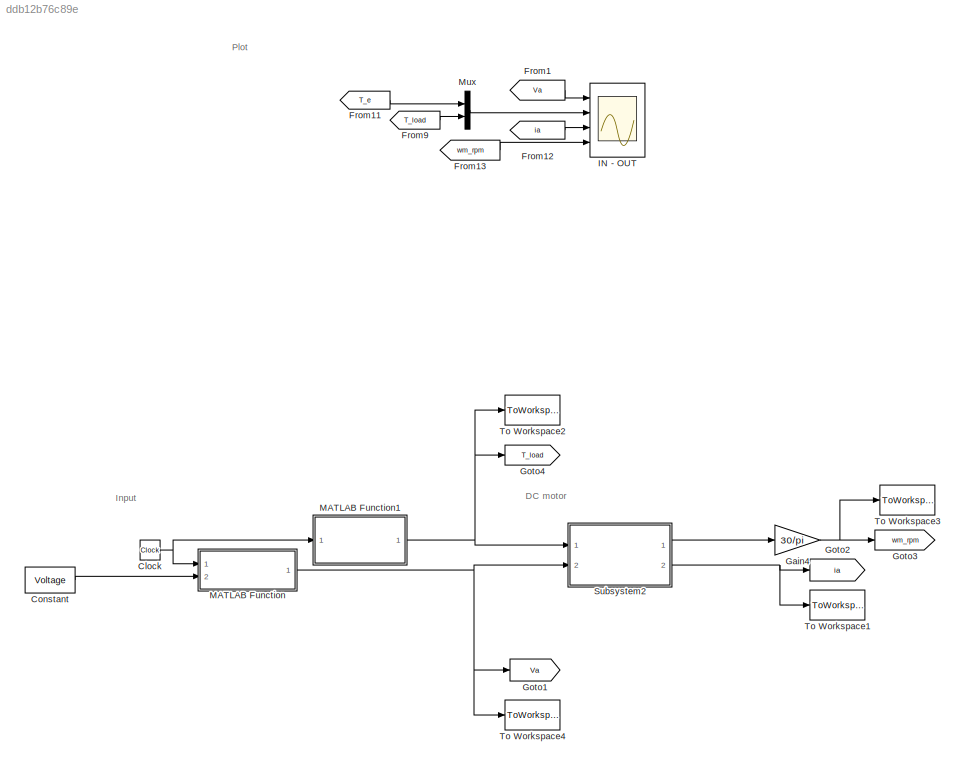
MODEL slx_ddb12b76c89e
KIND model
CONFIG AbsTol = auto
CONFIG EnableMultiTasking = off
CONFIG FixedStep = 0.001
CONFIG MaxStep = auto
CONFIG MinStep = auto
CONFIG RelTol = 1e-3
CONFIG SampleTimeConstraint = Unconstrained
CONFIG SolverName = FixedStepAuto
CONFIG StartTime = 0.0
CONFIG StopTime = 15
BLOCK [Clock] Clock
BLOCK [Constant] Constant
  Value = Voltage
BLOCK [From] From1
  GotoTag = Va
  TagVisibility = global
BLOCK [From] From11
  GotoTag = T_e
  TagVisibility = global
BLOCK [From] From12
  GotoTag = ia
  TagVisibility = global
BLOCK [From] From13
  GotoTag = wm_rpm
  TagVisibility = global
BLOCK [From] From9
  GotoTag = T_load
  TagVisibility = global
BLOCK [Gain] Gain4
  Gain = 30/pi
BLOCK [Goto] Goto1
  GotoTag = Va
  TagVisibility = global
BLOCK [Goto] Goto2
  GotoTag = ia
  TagVisibility = global
BLOCK [Goto] Goto3
  GotoTag = wm_rpm
  TagVisibility = global
BLOCK [Goto] Goto4
  GotoTag = T_load
  TagVisibility = global
BLOCK [Scope] IN - OUT
  Floating = off
  NumInputPorts = 4
  Ports = [4]
  ScopeSpecificationString = Simulink.scopes.TimeScopeBlockCfg('CurrentConfiguration', extmgr.ConfigurationSet(extmgr.Configuration('Core','General UI',true),extmgr.Configuration('Core','Source UI',true),extmgr.Configuration('Sources','WiredSimulink',true,'DataLogging',true,'DataLoggingVariableName','DCmotor_In_Out','DataLoggingSaveFormat','StructureWithTime'),extmgr.Configuration('Visuals','Time Domain',true,'SerializedDispl...<+4087ch>
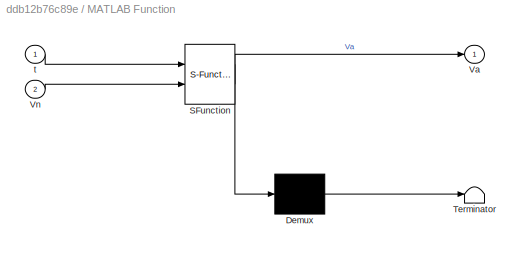
BLOCK [SubSystem] MATLAB Function
  ErrorFcn = Stateflow.Translate.translate
  PermitHierarchicalResolution = ExplicitOnly
  Ports = [2, 1]
  RequestExecContextInheritance = off
  SFBlockType = MATLAB Function
  TreatAsAtomicUnit = on
BLOCK [Demux] MATLAB Function/ Demux 
  Outputs = 1
  Ports = [1, 1]
BLOCK [S-Function] MATLAB Function/ SFunction 
  EnableBusSupport = on
  FunctionName = sf_sfun
  PortCounts = [2 2]
  Ports = [2, 2]
  SFcnIsStateOwnerBlock = off
  SFunctionDeploymentMode = off
  Tag = Stateflow S-Function 2
BLOCK [Terminator] MATLAB Function/ Terminator 
BLOCK [Outport] MATLAB Function/Va
BLOCK [Inport] MATLAB Function/Vn
  Port = 2
BLOCK [Inport] MATLAB Function/t
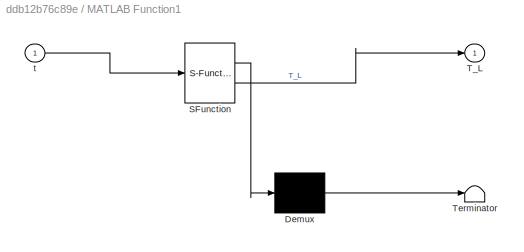
BLOCK [SubSystem] MATLAB Function1
  ErrorFcn = Stateflow.Translate.translate
  PermitHierarchicalResolution = ExplicitOnly
  Ports = [1, 1]
  RequestExecContextInheritance = off
  SFBlockType = MATLAB Function
  TreatAsAtomicUnit = on
BLOCK [Demux] MATLAB Function1/ Demux 
  Outputs = 1
  Ports = [1, 1]
BLOCK [S-Function] MATLAB Function1/ SFunction 
  EnableBusSupport = on
  FunctionName = sf_sfun
  PortCounts = [1 2]
  Ports = [1, 2]
  SFcnIsStateOwnerBlock = off
  SFunctionDeploymentMode = off
  Tag = Stateflow S-Function 1
BLOCK [Terminator] MATLAB Function1/ Terminator 
BLOCK [Outport] MATLAB Function1/T_L
BLOCK [Inport] MATLAB Function1/t
BLOCK [Mux] Mux
  DisplayOption = bar
  Inputs = 2
  Ports = [2, 1]
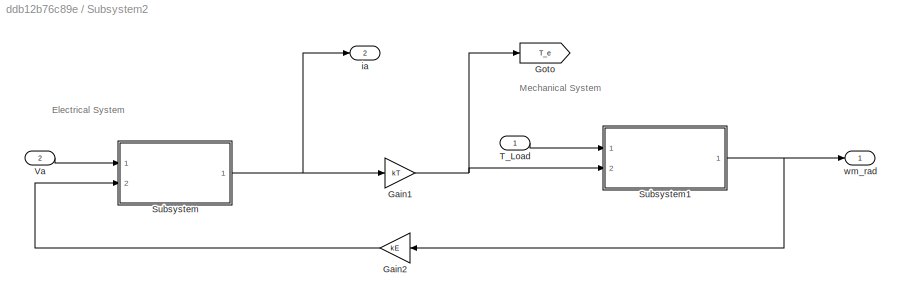
BLOCK [SubSystem] Subsystem2
  Ports = [2, 2]
  RequestExecContextInheritance = off
BLOCK [Gain] Subsystem2/Gain1
  Gain = kT
BLOCK [Gain] Subsystem2/Gain2
  Gain = kE
  NameLocation = top
BLOCK [Goto] Subsystem2/Goto
  GotoTag = T_e
  TagVisibility = global
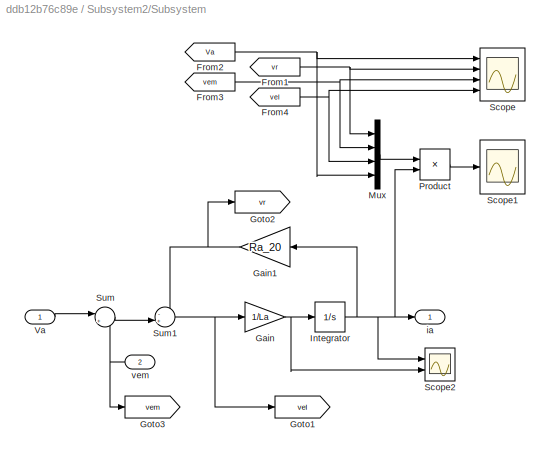
BLOCK [SubSystem] Subsystem2/Subsystem
  Ports = [2, 1]
  RequestExecContextInheritance = off
BLOCK [From] Subsystem2/Subsystem/From1
  GotoTag = vr
  TagVisibility = global
BLOCK [From] Subsystem2/Subsystem/From2
  GotoTag = Va
  TagVisibility = global
BLOCK [From] Subsystem2/Subsystem/From3
  GotoTag = vem
  TagVisibility = global
BLOCK [From] Subsystem2/Subsystem/From4
  GotoTag = vel
  TagVisibility = global
BLOCK [Gain] Subsystem2/Subsystem/Gain
  Gain = 1/La
BLOCK [Gain] Subsystem2/Subsystem/Gain1
  Gain = Ra_20
  NameLocation = top
BLOCK [Goto] Subsystem2/Subsystem/Goto1
  GotoTag = vel
  TagVisibility = global
BLOCK [Goto] Subsystem2/Subsystem/Goto2
  GotoTag = vr
  TagVisibility = global
BLOCK [Goto] Subsystem2/Subsystem/Goto3
  GotoTag = vem
  TagVisibility = global
BLOCK [Integrator] Subsystem2/Subsystem/Integrator
  InitialCondition = i0
  Ports = [1, 1]
BLOCK [Mux] Subsystem2/Subsystem/Mux
  DisplayOption = bar
  Ports = [4, 1]
BLOCK [Product] Subsystem2/Subsystem/Product
  Ports = [2, 1]
BLOCK [Scope] Subsystem2/Subsystem/Scope
  Floating = off
  NumInputPorts = 4
  Ports = [4]
  ScopeSpecificationString = Simulink.scopes.TimeScopeBlockCfg('CurrentConfiguration', extmgr.ConfigurationSet(extmgr.Configuration('Core','General UI',true),extmgr.Configuration('Core','Source UI',true),extmgr.Configuration('Sources','WiredSimulink',true,'DataLoggingVariableName','V_components','DataLogging',true,'DataLoggingSaveFormat','StructureWithTime'),extmgr.Configuration('Visuals','Time Domain',true,'SerializedDisplay...<+2007ch>
BLOCK [Scope] Subsystem2/Subsystem/Scope1
  Floating = off
  NumInputPorts = 1
  Ports = [1]
  ScopeSpecificationString = Simulink.scopes.TimeScopeBlockCfg('CurrentConfiguration', extmgr.ConfigurationSet(extmgr.Configuration('Core','General UI',true),extmgr.Configuration('Core','Source UI',true),extmgr.Configuration('Sources','WiredSimulink',true,'DataLoggingVariableName','P_components_el','DataLogging',true),extmgr.Configuration('Visuals','Time Domain',true,'SerializedDisplays',{struct('MinYLimReal','-30.55345','Max...<+2011ch>
BLOCK [Scope] Subsystem2/Subsystem/Scope2
  Floating = off
  NumInputPorts = 2
  Ports = [2]
  ScopeSpecificationString = Simulink.scopes.TimeScopeBlockCfg('CurrentConfiguration', extmgr.ConfigurationSet(extmgr.Configuration('Core','General UI',true),extmgr.Configuration('Core','Source UI',true),extmgr.Configuration('Sources','WiredSimulink',true,'DataLoggingVariableName','ScopeData4'),extmgr.Configuration('Visuals','Time Domain',true,'SerializedDisplays',{struct('MinYLimReal','-1.47931','MaxYLimReal','13.31379','YLa...<+2640ch>
BLOCK [Sum] Subsystem2/Subsystem/Sum
  Inputs = |+-
  Ports = [2, 1]
BLOCK [Sum] Subsystem2/Subsystem/Sum1
  Inputs = -+|
  Ports = [2, 1]
BLOCK [Inport] Subsystem2/Subsystem/Va
BLOCK [Outport] Subsystem2/Subsystem/ia
BLOCK [Inport] Subsystem2/Subsystem/vem
  Port = 2
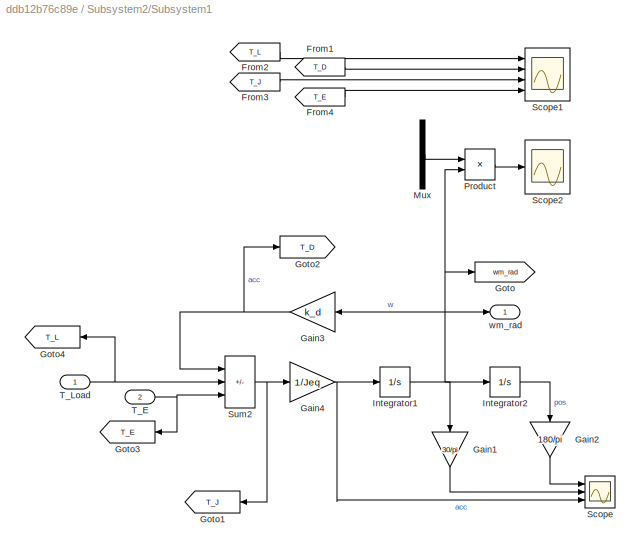
BLOCK [SubSystem] Subsystem2/Subsystem1
  Ports = [2, 1]
  RequestExecContextInheritance = off
BLOCK [From] Subsystem2/Subsystem1/From1
  GotoTag = T_D
  TagVisibility = global
BLOCK [From] Subsystem2/Subsystem1/From2
  GotoTag = T_L
  TagVisibility = global
BLOCK [From] Subsystem2/Subsystem1/From3
  GotoTag = T_J
  TagVisibility = global
BLOCK [From] Subsystem2/Subsystem1/From4
  GotoTag = T_E
  TagVisibility = global
BLOCK [Gain] Subsystem2/Subsystem1/Gain1
  Gain = 30/pi
  NameLocation = left
BLOCK [Gain] Subsystem2/Subsystem1/Gain2
  Gain = 180/pi
  NameLocation = left
BLOCK [Gain] Subsystem2/Subsystem1/Gain3
  Gain = k_d
  NameLocation = top
BLOCK [Gain] Subsystem2/Subsystem1/Gain4
  Gain = 1/Jeq
BLOCK [Goto] Subsystem2/Subsystem1/Goto
  GotoTag = wm_rad
  TagVisibility = global
BLOCK [Goto] Subsystem2/Subsystem1/Goto1
  GotoTag = T_J
  NameLocation = top
  TagVisibility = global
BLOCK [Goto] Subsystem2/Subsystem1/Goto2
  GotoTag = T_D
  TagVisibility = global
BLOCK [Goto] Subsystem2/Subsystem1/Goto3
  GotoTag = T_E
  NameLocation = top
  TagVisibility = global
BLOCK [Goto] Subsystem2/Subsystem1/Goto4
  GotoTag = T_L
  NameLocation = top
  TagVisibility = global
BLOCK [Integrator] Subsystem2/Subsystem1/Integrator1
  InitialCondition = w0
  Ports = [1, 1]
BLOCK [Integrator] Subsystem2/Subsystem1/Integrator2
  InitialCondition = pos0
  Ports = [1, 1]
  WrapState = on
  WrappedStateLowerValue = 0
  WrappedStateUpperValue = 2*pi
BLOCK [Mux] Subsystem2/Subsystem1/Mux
  DisplayOption = bar
  Ports = [4, 1]
BLOCK [Product] Subsystem2/Subsystem1/Product
  Ports = [2, 1]
BLOCK [Scope] Subsystem2/Subsystem1/Scope
  Floating = off
  NumInputPorts = 3
  Ports = [3]
  ScopeSpecificationString = Simulink.scopes.TimeScopeBlockCfg('CurrentConfiguration', extmgr.ConfigurationSet(extmgr.Configuration('Core','General UI',true),extmgr.Configuration('Core','Source UI',true),extmgr.Configuration('Sources','WiredSimulink',true,'DataLoggingVariableName','ScopeData1'),extmgr.Configuration('Visuals','Time Domain',true,'SerializedDisplays',{struct('MinYLimReal','-44.99496','MaxYLimReal','404.95465','Y...<+3560ch>
BLOCK [Scope] Subsystem2/Subsystem1/Scope1
  Floating = off
  NumInputPorts = 4
  Ports = [4]
  ScopeSpecificationString = Simulink.scopes.TimeScopeBlockCfg('CurrentConfiguration', extmgr.ConfigurationSet(extmgr.Configuration('Core','General UI',true),extmgr.Configuration('Core','Source UI',true),extmgr.Configuration('Sources','WiredSimulink',true,'DataLoggingVariableName','Torque_components','DataLogging',true),extmgr.Configuration('Visuals','Time Domain',true,'SerializedDisplays',{struct('MinYLimReal','-1.81965','Ma...<+2040ch>
BLOCK [Scope] Subsystem2/Subsystem1/Scope2
  Floating = off
  NumInputPorts = 1
  Ports = [1]
  ScopeSpecificationString = Simulink.scopes.TimeScopeBlockCfg('CurrentConfiguration', extmgr.ConfigurationSet(extmgr.Configuration('Core','General UI',true),extmgr.Configuration('Core','Source UI',true),extmgr.Configuration('Sources','WiredSimulink',true,'DataLoggingVariableName','ScopeData3'),extmgr.Configuration('Visuals','Time Domain',true,'SerializedDisplays',{struct('MinYLimReal','-279.40903','MaxYLimReal','279.67004','...<+1965ch>
BLOCK [Sum] Subsystem2/Subsystem1/Sum2
  IconShape = rectangular
  Inputs = --+
  Ports = [3, 1]
BLOCK [Inport] Subsystem2/Subsystem1/T_E
  NameLocation = left
  Port = 2
BLOCK [Inport] Subsystem2/Subsystem1/T_Load
BLOCK [Outport] Subsystem2/Subsystem1/wm_rad
BLOCK [Inport] Subsystem2/T_Load
BLOCK [Inport] Subsystem2/Va
  Port = 2
BLOCK [Outport] Subsystem2/ia
  Port = 2
BLOCK [Outport] Subsystem2/wm_rad
BLOCK [ToWorkspace] To Workspace1
  FixptAsFi = on
  MaxDataPoints = inf
  Ports = [1]
  SampleTime = -1
  SaveFormat = Structure With Time
  VariableName = ia
BLOCK [ToWorkspace] To Workspace2
  FixptAsFi = on
  MaxDataPoints = inf
  Ports = [1]
  SampleTime = -1
  SaveFormat = Structure With Time
  VariableName = T_Load
BLOCK [ToWorkspace] To Workspace3
  FixptAsFi = on
  MaxDataPoints = inf
  Ports = [1]
  SampleTime = -1
  SaveFormat = Structure With Time
  VariableName = wm_rpm
BLOCK [ToWorkspace] To Workspace4
  FixptAsFi = on
  MaxDataPoints = inf
  Ports = [1]
  SampleTime = -1
  SaveFormat = Structure With Time
  VariableName = Va
ANNOTATION (root): DC motor
ANNOTATION (root): Input
ANNOTATION (root): Plot
ANNOTATION Subsystem2: Electrical System
ANNOTATION Subsystem2: Mechanical System
NET Clock:1 -> MATLAB Function1:1, MATLAB Function:1
LINE Constant:1 -> MATLAB Function:2
LINE From11:1 -> Mux:1
LINE From12:1 -> IN - OUT:3
LINE From13:1 -> IN - OUT:4
LINE From1:1 -> IN - OUT:1
LINE From9:1 -> Mux:2
NET Gain4:1 -> Goto3:1, To Workspace3:1
NET MATLAB Function1:1 -> Goto4:1, Subsystem2:1, To Workspace2:1
NET MATLAB Function:1 -> Goto1:1, Subsystem2:2, To Workspace4:1
LINE Mux:1 -> IN - OUT:2
NET Subsystem2/Gain1:1 -> Subsystem2/Goto:1, Subsystem2/Subsystem1:2
LINE Subsystem2/Gain2:1 -> Subsystem2/Subsystem:2
NET Subsystem2/Subsystem/From1:1 -> Subsystem2/Subsystem/Mux:1, Subsystem2/Subsystem/Scope:2
NET Subsystem2/Subsystem/From2:1 -> Subsystem2/Subsystem/Mux:4, Subsystem2/Subsystem/Scope:1
NET Subsystem2/Subsystem/From3:1 -> Subsystem2/Subsystem/Mux:2, Subsystem2/Subsystem/Scope:3
NET Subsystem2/Subsystem/From4:1 -> Subsystem2/Subsystem/Mux:3, Subsystem2/Subsystem/Scope:4
NET Subsystem2/Subsystem/Gain1:1 -> Subsystem2/Subsystem/Goto2:1, Subsystem2/Subsystem/Sum1:1
NET Subsystem2/Subsystem/Gain:1 -> Subsystem2/Subsystem/Integrator:1, Subsystem2/Subsystem/Scope2:2
NET Subsystem2/Subsystem/Integrator:1 -> Subsystem2/Subsystem/Gain1:1, Subsystem2/Subsystem/Product:2, Subsystem2/Subsystem/Scope2:1, Subsystem2/Subsystem/ia:1
LINE Subsystem2/Subsystem/Mux:1 -> Subsystem2/Subsystem/Product:1
LINE Subsystem2/Subsystem/Product:1 -> Subsystem2/Subsystem/Scope1:1
NET Subsystem2/Subsystem/Sum1:1 -> Subsystem2/Subsystem/Gain:1, Subsystem2/Subsystem/Goto1:1
LINE Subsystem2/Subsystem/Sum:1 -> Subsystem2/Subsystem/Sum1:2
LINE Subsystem2/Subsystem/Va:1 -> Subsystem2/Subsystem/Sum:1
NET Subsystem2/Subsystem/vem:1 -> Subsystem2/Subsystem/Goto3:1, Subsystem2/Subsystem/Sum:2
LINE Subsystem2/Subsystem1/From1:1 -> Subsystem2/Subsystem1/Scope1:2
LINE Subsystem2/Subsystem1/From2:1 -> Subsystem2/Subsystem1/Scope1:1
LINE Subsystem2/Subsystem1/From3:1 -> Subsystem2/Subsystem1/Scope1:3
LINE Subsystem2/Subsystem1/From4:1 -> Subsystem2/Subsystem1/Scope1:4
LINE Subsystem2/Subsystem1/Gain1:1 -> Subsystem2/Subsystem1/Scope:2
LINE Subsystem2/Subsystem1/Gain2:1 -> Subsystem2/Subsystem1/Scope:1
NET Subsystem2/Subsystem1/Gain3:1 -> Subsystem2/Subsystem1/Goto2:1, Subsystem2/Subsystem1/Sum2:1
NET Subsystem2/Subsystem1/Gain4:1 -> Subsystem2/Subsystem1/Integrator1:1, Subsystem2/Subsystem1/Scope:3
NET Subsystem2/Subsystem1/Integrator1:1 -> Subsystem2/Subsystem1/Gain1:1, Subsystem2/Subsystem1/Gain3:1, Subsystem2/Subsystem1/Goto:1, Subsystem2/Subsystem1/Integrator2:1, Subsystem2/Subsystem1/Product:2, Subsystem2/Subsystem1/wm_rad:1
LINE Subsystem2/Subsystem1/Integrator2:1 -> Subsystem2/Subsystem1/Gain2:1
LINE Subsystem2/Subsystem1/Mux:1 -> Subsystem2/Subsystem1/Product:1
LINE Subsystem2/Subsystem1/Product:1 -> Subsystem2/Subsystem1/Scope2:1
NET Subsystem2/Subsystem1/Sum2:1 -> Subsystem2/Subsystem1/Gain4:1, Subsystem2/Subsystem1/Goto1:1
NET Subsystem2/Subsystem1/T_E:1 -> Subsystem2/Subsystem1/Goto3:1, Subsystem2/Subsystem1/Sum2:3
NET Subsystem2/Subsystem1/T_Load:1 -> Subsystem2/Subsystem1/Goto4:1, Subsystem2/Subsystem1/Sum2:2
NET Subsystem2/Subsystem1:1 -> Subsystem2/Gain2:1, Subsystem2/wm_rad:1
NET Subsystem2/Subsystem:1 -> Subsystem2/Gain1:1, Subsystem2/ia:1
LINE Subsystem2/T_Load:1 -> Subsystem2/Subsystem1:1
LINE Subsystem2/Va:1 -> Subsystem2/Subsystem:1
LINE Subsystem2:1 -> Gain4:1
NET Subsystem2:2 -> Goto2:1, To Workspace1:1
note: NET lines group one-source signal fan-out (src -> all destinations, sorted); 1:1 wires keep LINE
CHART MATLAB Function states=1 transitions=1
  STATE_LABEL 'eML_blk_kernel()'
  STATE_LABEL 'SCRIPT:\nfunction Va = InputVoltage(t, Vn)\n\nt_on = 0.5;\nvolt_second = 7;\n\nif (t < t_on)\n    Va = 0;\n\nelseif (t > t_on) \n    Va = volt_second * (t - t_on);\n\nelse\n    Va = 0;\n\nend\n\nif Va > Vn \n    Va = Vn;\n\nend\n\n'
CHART MATLAB Function1 states=1 transitions=1
  STATE_LABEL 'eML_blk_kernel()'
  STATE_LABEL 'SCRIPT:\nfunction T_L = InputLoadTorque(t)\nt_load = 8;\n\nif (t < t_load)\n    T_L = 0;\n\nelseif (t > t_load) \n    T_L = 1.5;\n\nelse\n    T_L = 0;\n\nend\n\n'
CHART  states=0 transitions=0
CHART  states=0 transitions=0
